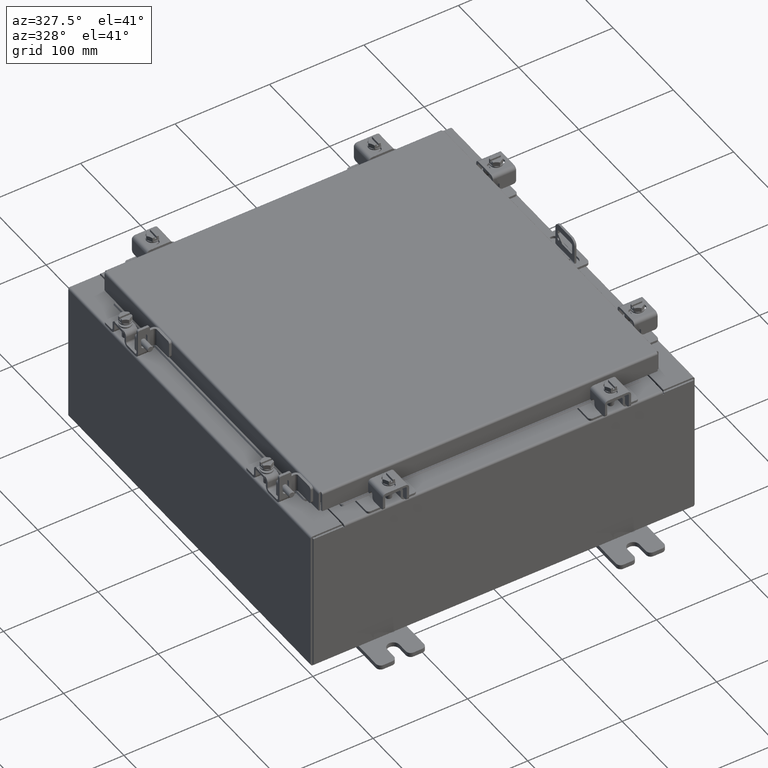
[diagram: clean part render]
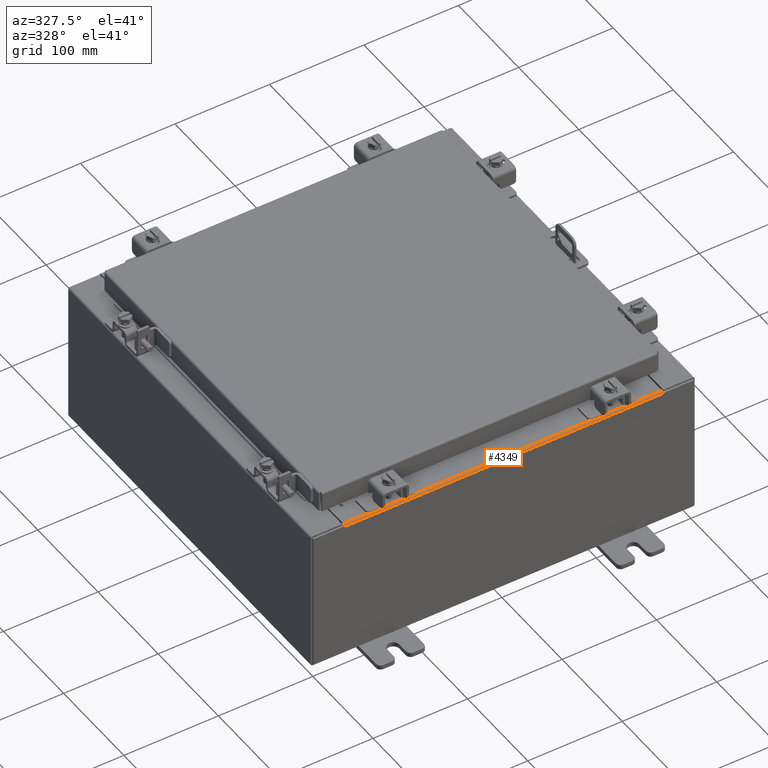
[diagram: same view with one face highlighted and labeled with its STEP entity id]
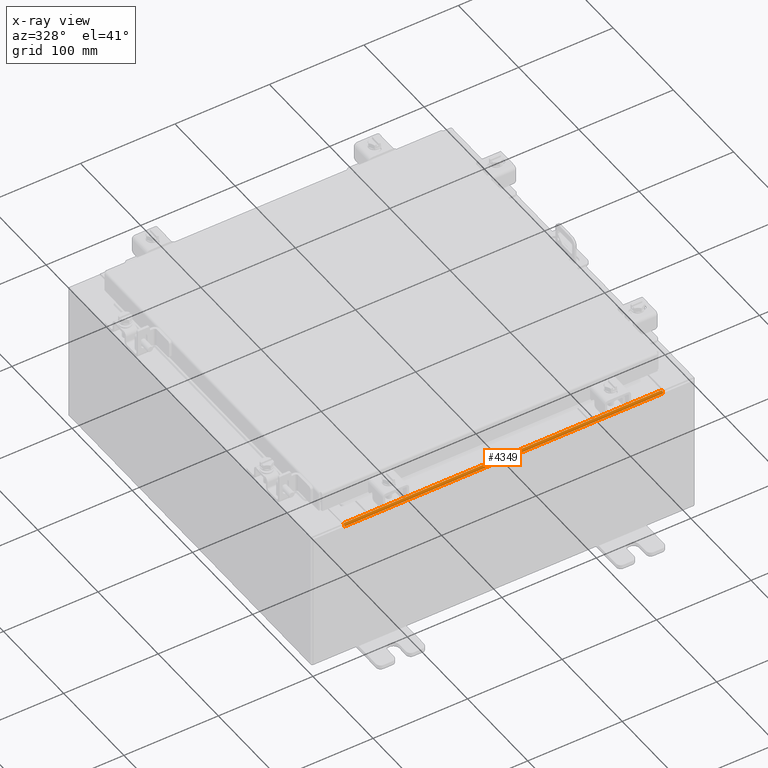
[diagram: x-ray of the same camera — body ghosted, the highlighted face saturated]
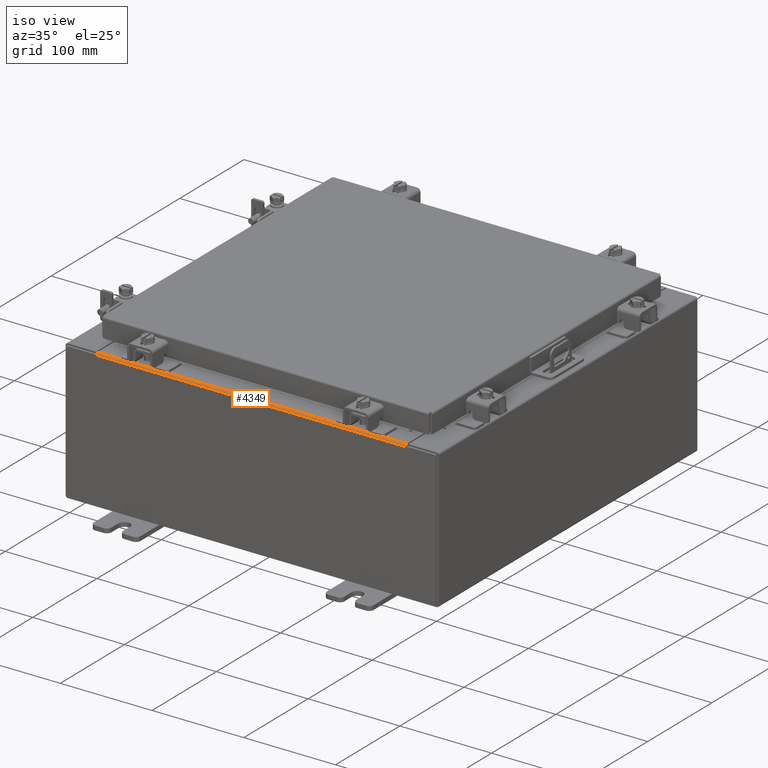
[diagram: same view with one face highlighted and labeled with its STEP entity id]
A machine part, auxiliary view. The second image highlights one B-rep face of the part: STEP entity #4349.
The next image is the same camera in x-ray: the body ghosted, the highlighted face saturated — about 0% of this face is hidden behind the body in this view.
A second angle (iso view) of the same face is appended — the face is thin or edge-on in the first view.
In plain terms, the highlighted cylindrical surface (edge-blend (fillet) strip) has radius 2.2276 mm, axis along (1, 0, 0).
Its self-contained STEP definition (entity closure, byte-faithful):
#984 = VERTEX_POINT ( 'NONE', #15047 ) ;
#1607 = CIRCLE ( 'NONE', #20388, 0.08770000000000026400 ) ;
#1875 = EDGE_CURVE ( 'NONE', #984, #11620, #14554, .T. ) ;
#3188 = CIRCLE ( 'NONE', #7238, 0.08770000000000026400 ) ;
#3227 = ORIENTED_EDGE ( 'NONE', *, *, #14603, .F. ) ;
#4046 = ORIENTED_EDGE ( 'NONE', *, *, #12850, .F. ) ;
#4178 = CARTESIAN_POINT ( 'NONE',  ( -6.637200000000000000, -0.08770000000000026400, 3.000000000000000900 ) ) ;
#4267 = ORIENTED_EDGE ( 'NONE', *, *, #18421, .F. ) ;
#4349 = ADVANCED_FACE ( 'NONE', ( #19955 ), #19481, .T. ) ;
#5445 = VECTOR ( 'NONE', #17552, 39.37007874015748100 ) ;
#7238 = AXIS2_PLACEMENT_3D ( 'NONE', #17861, #8242, #19474 ) ;
#7499 = AXIS2_PLACEMENT_3D ( 'NONE', #7986, #11163, #20797 ) ;
#7679 = CARTESIAN_POINT ( 'NONE',  ( 6.637199999999999100, -0.08770000000000026400, 2.912300000000000600 ) ) ;
#7986 = CARTESIAN_POINT ( 'NONE',  ( -6.637200000000000900, -0.08770000000000026400, 2.912300000000000600 ) ) ;
#8242 = DIRECTION ( 'NONE',  ( -1.000000000000000000, -0.0000000000000000000, -0.0000000000000000000 ) ) ;
#9055 = VERTEX_POINT ( 'NONE', #9570 ) ;
#9252 = DIRECTION ( 'NONE',  ( 0.0000000000000000000, -1.752183006198567300E-015, 1.000000000000000000 ) ) ;
#9570 = CARTESIAN_POINT ( 'NONE',  ( -6.637200000000000900, -1.707404996040164500E-016, 2.912300000000000600 ) ) ;
#10815 = VECTOR ( 'NONE', #15969, 39.37007874015748100 ) ;
#11163 = DIRECTION ( 'NONE',  ( -1.000000000000000000, -0.0000000000000000000, -0.0000000000000000000 ) ) ;
#11620 = VERTEX_POINT ( 'NONE', #4178 ) ;
#12572 = ORIENTED_EDGE ( 'NONE', *, *, #1875, .F. ) ;
#12712 = CARTESIAN_POINT ( 'NONE',  ( -6.637200000000000900, -1.707404996040164500E-016, 2.912300000000000600 ) ) ;
#12850 = EDGE_CURVE ( 'NONE', #11620, #9055, #3188, .T. ) ;
#14554 = LINE ( 'NONE', #19007, #5445 ) ;
#14603 = EDGE_CURVE ( 'NONE', #15912, #984, #1607, .T. ) ;
#14626 = LINE ( 'NONE', #12712, #10815 ) ;
#14993 = CARTESIAN_POINT ( 'NONE',  ( 6.637199999999999100, 0.0000000000000000000, 2.912300000000000600 ) ) ;
#15047 = CARTESIAN_POINT ( 'NONE',  ( 6.637199999999999100, -0.08769999999999993100, 3.000000000000000900 ) ) ;
#15912 = VERTEX_POINT ( 'NONE', #14993 ) ;
#15969 = DIRECTION ( 'NONE',  ( 1.000000000000000000, 0.0000000000000000000, 0.0000000000000000000 ) ) ;
#17552 = DIRECTION ( 'NONE',  ( -1.000000000000000000, 0.0000000000000000000, 0.0000000000000000000 ) ) ;
#17861 = CARTESIAN_POINT ( 'NONE',  ( -6.637200000000000900, -0.08770000000000026400, 2.912300000000000600 ) ) ;
#18421 = EDGE_CURVE ( 'NONE', #9055, #15912, #14626, .T. ) ;
#18901 = DIRECTION ( 'NONE',  ( 1.000000000000000000, 0.0000000000000000000, 0.0000000000000000000 ) ) ;
#19007 = CARTESIAN_POINT ( 'NONE',  ( 0.0000000000000000000, -0.08770000000000026400, 3.000000000000001300 ) ) ;
#19474 = DIRECTION ( 'NONE',  ( 0.0000000000000000000, 0.0000000000000000000, 1.000000000000000000 ) ) ;
#19481 = CYLINDRICAL_SURFACE ( 'NONE', #7499, 0.08770000000000026400 ) ;
#19955 = FACE_OUTER_BOUND ( 'NONE', #20094, .T. ) ;
#20094 = EDGE_LOOP ( 'NONE', ( #4267, #4046, #12572, #3227 ) ) ;
#20388 = AXIS2_PLACEMENT_3D ( 'NONE', #7679, #18901, #9252 ) ;
#20797 = DIRECTION ( 'NONE',  ( 0.0000000000000000000, 3.504366012397134600E-015, 1.000000000000000000 ) ) ;